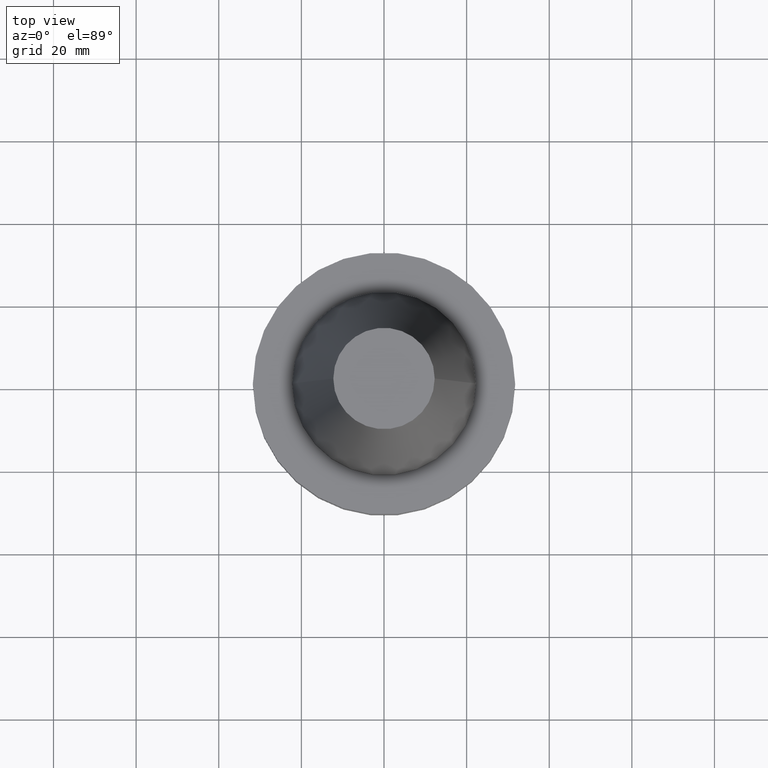
[diagram: clean part render]
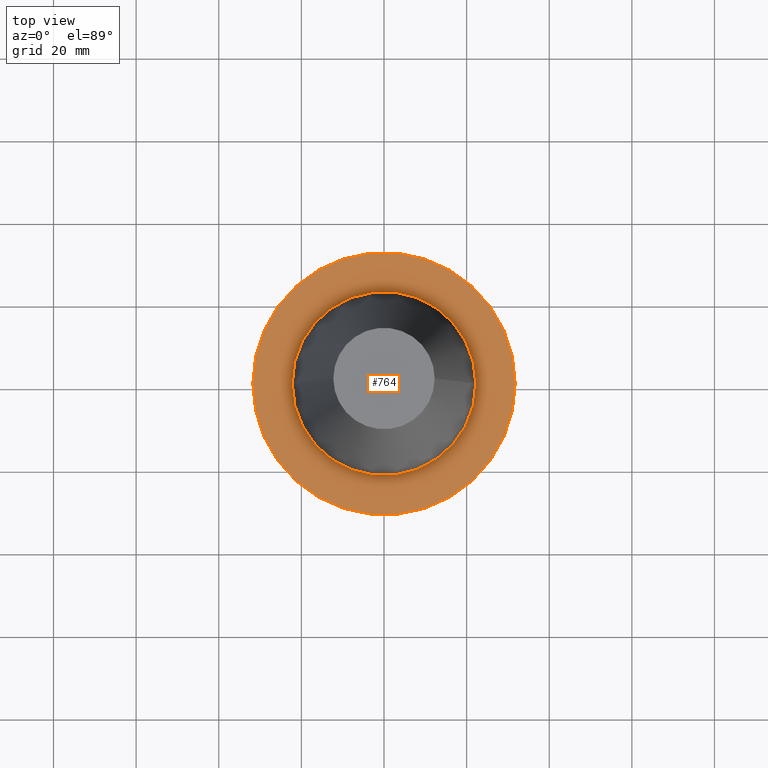
[diagram: same view with one face highlighted and labeled with its STEP entity id]
A machine part, top view. The second image highlights one B-rep face of the part: STEP entity #764.
In plain terms, the highlighted planar face has unit normal (0, 0, -1).
Its self-contained STEP definition (entity closure, byte-faithful):
#6 = EDGE_CURVE ( 'NONE', #467, #290, #358, .T. ) ;
#18 = AXIS2_PLACEMENT_3D ( 'NONE', #76, #97, #217 ) ;
#22 = CARTESIAN_POINT ( 'NONE',  ( 31.75000000000000000, 0.000000000000000000, -3.174999999999997158 ) ) ;
#33 = AXIS2_PLACEMENT_3D ( 'NONE', #326, #673, #262 ) ;
#37 = EDGE_CURVE ( 'NONE', #179, #419, #411, .T. ) ;
#76 = CARTESIAN_POINT ( 'NONE',  ( 0.000000000000000000, 0.000000000000000000, -3.174999999999997158 ) ) ;
#97 = DIRECTION ( 'NONE',  ( -0.000000000000000000, -0.000000000000000000, 1.000000000000000000 ) ) ;
#178 = ORIENTED_EDGE ( 'NONE', *, *, #6, .T. ) ;
#179 = VERTEX_POINT ( 'NONE', #699 ) ;
#217 = DIRECTION ( 'NONE',  ( 1.000000000000000000, 0.000000000000000000, 0.000000000000000000 ) ) ;
#219 = CARTESIAN_POINT ( 'NONE',  ( 22.22500000000000142, 0.000000000000000000, -3.174999999999997158 ) ) ;
#262 = DIRECTION ( 'NONE',  ( 1.000000000000000000, 0.000000000000000000, 0.000000000000000000 ) ) ;
#290 = VERTEX_POINT ( 'NONE', #22 ) ;
#307 = AXIS2_PLACEMENT_3D ( 'NONE', #348, #768, #590 ) ;
#308 = DIRECTION ( 'NONE',  ( 1.000000000000000000, 0.000000000000000000, 0.000000000000000000 ) ) ;
#324 = EDGE_CURVE ( 'NONE', #419, #179, #683, .T. ) ;
#326 = CARTESIAN_POINT ( 'NONE',  ( 0.000000000000000000, 0.000000000000000000, -3.174999999999997158 ) ) ;
#346 = PLANE ( 'NONE',  #608 ) ;
#348 = CARTESIAN_POINT ( 'NONE',  ( 0.000000000000000000, 0.000000000000000000, -3.174999999999997158 ) ) ;
#358 = CIRCLE ( 'NONE', #18, 31.75000000000000000 ) ;
#411 = CIRCLE ( 'NONE', #33, 22.22500000000000142 ) ;
#419 = VERTEX_POINT ( 'NONE', #219 ) ;
#426 = CARTESIAN_POINT ( 'NONE',  ( 0.000000000000000000, 0.000000000000000000, -3.174999999999997158 ) ) ;
#454 = EDGE_LOOP ( 'NONE', ( #492, #627 ) ) ;
#459 = CARTESIAN_POINT ( 'NONE',  ( -31.75000000000000000, 3.888253587292846476E-15, -3.174999999999997158 ) ) ;
#467 = VERTEX_POINT ( 'NONE', #459 ) ;
#469 = DIRECTION ( 'NONE',  ( -1.000000000000000000, 0.000000000000000000, -0.000000000000000000 ) ) ;
#492 = ORIENTED_EDGE ( 'NONE', *, *, #324, .F. ) ;
#524 = FACE_OUTER_BOUND ( 'NONE', #756, .T. ) ;
#532 = EDGE_CURVE ( 'NONE', #290, #467, #560, .T. ) ;
#560 = CIRCLE ( 'NONE', #307, 31.75000000000000000 ) ;
#585 = CARTESIAN_POINT ( 'NONE',  ( 0.000000000000000000, 31.75000000000000000, -3.174999999999993605 ) ) ;
#590 = DIRECTION ( 'NONE',  ( 1.000000000000000000, 0.000000000000000000, 0.000000000000000000 ) ) ;
#608 = AXIS2_PLACEMENT_3D ( 'NONE', #585, #769, #469 ) ;
#627 = ORIENTED_EDGE ( 'NONE', *, *, #37, .F. ) ;
#673 = DIRECTION ( 'NONE',  ( -0.000000000000000000, -0.000000000000000000, 1.000000000000000000 ) ) ;
#683 = CIRCLE ( 'NONE', #747, 22.22500000000000142 ) ;
#699 = CARTESIAN_POINT ( 'NONE',  ( -22.22500000000000142, 2.721777511104992849E-15, -3.174999999999997158 ) ) ;
#703 = FACE_BOUND ( 'NONE', #454, .T. ) ;
#727 = ORIENTED_EDGE ( 'NONE', *, *, #532, .T. ) ;
#730 = DIRECTION ( 'NONE',  ( -0.000000000000000000, -0.000000000000000000, 1.000000000000000000 ) ) ;
#747 = AXIS2_PLACEMENT_3D ( 'NONE', #426, #730, #308 ) ;
#756 = EDGE_LOOP ( 'NONE', ( #727, #178 ) ) ;
#764 = ADVANCED_FACE ( 'NONE', ( #703, #524 ), #346, .F. ) ;
#768 = DIRECTION ( 'NONE',  ( -0.000000000000000000, -0.000000000000000000, 1.000000000000000000 ) ) ;
#769 = DIRECTION ( 'NONE',  ( 0.000000000000000000, 0.000000000000000000, -1.000000000000000000 ) ) ;